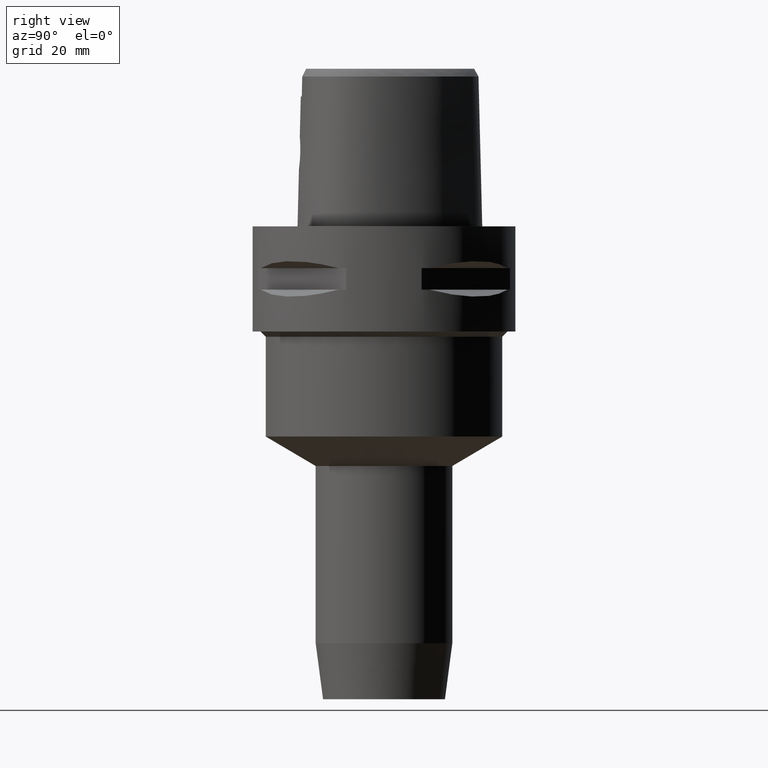
[diagram: clean part render]
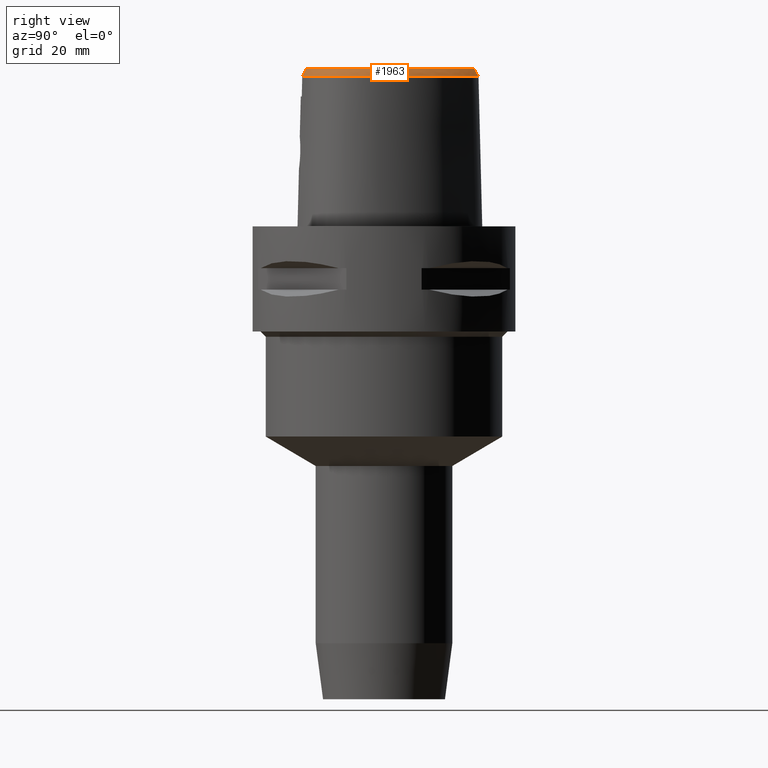
[diagram: same view with one face highlighted and labeled with its STEP entity id]
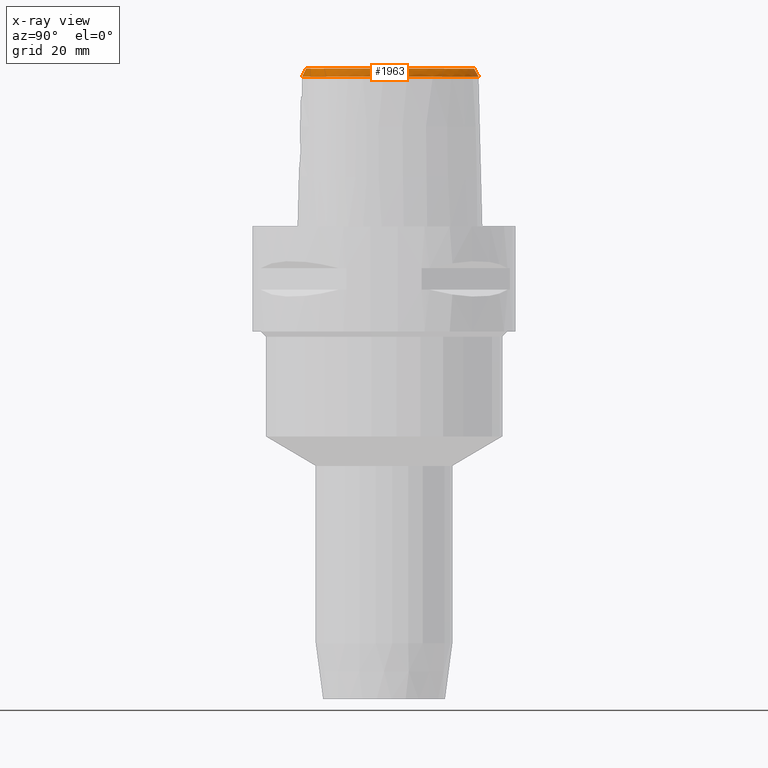
[diagram: x-ray of the same camera — body ghosted, the highlighted face saturated]
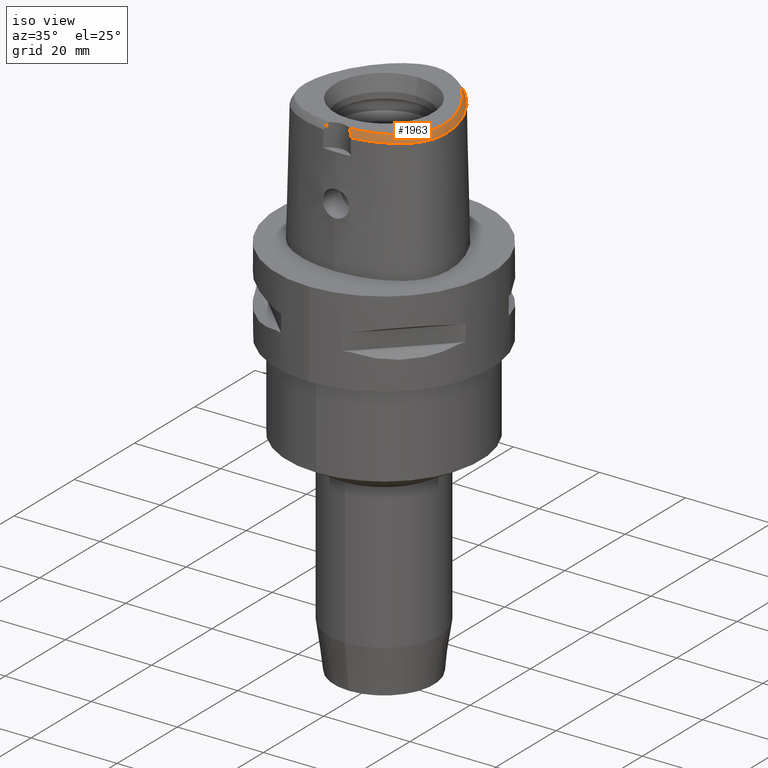
[diagram: same view with one face highlighted and labeled with its STEP entity id]
A machine part, right view. The second image highlights one B-rep face of the part: STEP entity #1963.
The next image is the same camera in x-ray: the body ghosted, the highlighted face saturated — about 0% of this face is hidden behind the body in this view.
A second angle (iso view) of the same face is appended — the face is thin or edge-on in the first view.
In plain terms, the highlighted face is a freeform B-spline surface patch.
Its self-contained STEP definition (entity closure, byte-faithful):
#62=CARTESIAN_POINT('',(-6.301949014352E-11,1.715328888648E1,3.E1));
#67=CARTESIAN_POINT('',(-6.301949014352E-11,1.715328888648E1,3.E1));
#68=CARTESIAN_POINT('',(2.952808845493E-1,1.715328888649E1,3.E1));
#69=CARTESIAN_POINT('',(8.996240518942E-1,1.712053373212E1,3.E1));
#70=CARTESIAN_POINT('',(1.839623063405E0,1.696779608511E1,3.E1));
#71=CARTESIAN_POINT('',(2.836726050628E0,1.669834167716E1,3.E1));
#72=CARTESIAN_POINT('',(3.902307995238E0,1.629108025566E1,3.E1));
#73=CARTESIAN_POINT('',(5.012193201258E0,1.573802455976E1,3.E1));
#74=CARTESIAN_POINT('',(6.138288675819E0,1.504430367204E1,3.E1));
#75=CARTESIAN_POINT('',(7.271253655398E0,1.420874341671E1,3.E1));
#76=CARTESIAN_POINT('',(8.408897067925E0,1.322591154194E1,3.E1));
#77=CARTESIAN_POINT('',(9.619388095311E0,1.201176841734E1,3.E1));
#78=CARTESIAN_POINT('',(1.090777017913E1,1.049293888976E1,3.E1));
#79=CARTESIAN_POINT('',(1.213793198120E1,8.773161148917E0,3.E1));
#80=CARTESIAN_POINT('',(1.324637325697E1,6.926073774187E0,3.E1));
#81=CARTESIAN_POINT('',(1.419737952771E1,5.007788298564E0,3.E1));
#82=CARTESIAN_POINT('',(1.496229316134E1,3.083550301862E0,3.E1));
#83=CARTESIAN_POINT('',(1.550186244853E1,1.311581271920E0,3.E1));
#84=CARTESIAN_POINT('',(1.584512957817E1,-2.359655692572E-1,3.E1));
#85=CARTESIAN_POINT('',(1.604994466485E1,-1.661171639363E0,3.E1));
#86=CARTESIAN_POINT('',(1.613437291865E1,-2.999757364771E0,3.E1));
#87=CARTESIAN_POINT('',(1.610382151531E1,-4.283899246164E0,3.E1));
#88=CARTESIAN_POINT('',(1.596111171047E1,-5.467705118177E0,3.E1));
#89=CARTESIAN_POINT('',(1.572822893958E1,-6.510611710359E0,3.E1));
#90=CARTESIAN_POINT('',(1.541729113224E1,-7.443341571847E0,3.E1));
#91=CARTESIAN_POINT('',(1.504032080193E1,-8.272189424004E0,3.E1));
#92=CARTESIAN_POINT('',(1.459366130196E1,-9.028112711350E0,3.E1));
#93=CARTESIAN_POINT('',(1.404298874532E1,-9.767749437442E0,3.E1));
#94=CARTESIAN_POINT('',(1.336603494177E1,-1.050203108513E1,3.E1));
#95=CARTESIAN_POINT('',(1.255054291691E1,-1.122378210253E1,3.E1));
#96=CARTESIAN_POINT('',(1.156712205978E1,-1.193338522332E1,3.E1));
#97=CARTESIAN_POINT('',(1.045692113097E1,-1.258509027585E1,3.E1));
#98=CARTESIAN_POINT('',(9.233000760816E0,-1.317026669540E1,3.E1));
#99=CARTESIAN_POINT('',(7.871642923742E0,-1.369331724234E1,3.E1));
#100=CARTESIAN_POINT('',(6.328050233809E0,-1.415770189933E1,3.E1));
#101=CARTESIAN_POINT('',(4.481796408503E0,-1.455864547773E1,3.E1));
#102=CARTESIAN_POINT('',(3.124087400129E0,-1.473994121077E1,3.E1));
#103=CARTESIAN_POINT('',(2.406543924165E0,-1.480491841402E1,3.E1));
#124=CARTESIAN_POINT('',(3.168920890823E0,-1.555911073834E1,2.852071374673E1));
#125=CARTESIAN_POINT('',(3.092755863962E0,-1.546022835618E1,2.871177036265E1));
#126=CARTESIAN_POINT('',(2.933489244829E0,-1.527275526903E1,2.907622624035E1));
#127=CARTESIAN_POINT('',(2.681051135247E0,-1.502456832809E1,2.956379575468E1));
#128=CARTESIAN_POINT('',(2.499766096913E0,-1.487513360177E1,2.986017147677E1));
#129=CARTESIAN_POINT('',(2.406543924165E0,-1.480491841402E1,3.E1));
#134=CARTESIAN_POINT('',(-3.033118856553E-11,1.798202997910E1,
2.852071728569E1));
#135=CARTESIAN_POINT('',(3.160640283862E-1,1.798202997911E1,2.852071728569E1));
#136=CARTESIAN_POINT('',(9.444556255956E-1,1.794935734593E1,2.852061253470E1));
#137=CARTESIAN_POINT('',(1.944566238217E0,1.779351684613E1,2.852074034233E1));
#138=CARTESIAN_POINT('',(2.993196919373E0,1.751881258389E1,2.852072673424E1));
#139=CARTESIAN_POINT('',(4.104773808554E0,1.710718365092E1,2.852071388418E1));
#140=CARTESIAN_POINT('',(5.272340008291E0,1.654205518686E1,2.852072796846E1));
#141=CARTESIAN_POINT('',(6.468319583525E0,1.582226382908E1,2.852071723037E1));
#142=CARTESIAN_POINT('',(7.663775089447E0,1.495631395994E1,2.852072068686E1));
#143=CARTESIAN_POINT('',(8.847753470091E0,1.394996407013E1,2.852071243644E1));
#144=CARTESIAN_POINT('',(1.010616434408E1,1.270671497934E1,2.852072019736E1));
#145=CARTESIAN_POINT('',(1.142996639913E1,1.117017039078E1,2.852071235748E1));
#146=CARTESIAN_POINT('',(1.269747918486E1,9.429807283006E0,2.852072879973E1));
#147=CARTESIAN_POINT('',(1.384631090109E1,7.554180538340E0,2.852068870461E1));
#148=CARTESIAN_POINT('',(1.483540988501E1,5.608470311578E0,2.852072663608E1));
#149=CARTESIAN_POINT('',(1.564622846479E1,3.634586031218E0,2.852069901783E1));
#150=CARTESIAN_POINT('',(1.623469424307E1,1.783089345948E0,2.852072217919E1));
#151=CARTESIAN_POINT('',(1.662027875104E1,1.321033721159E-1,2.852072413092E1));
#152=CARTESIAN_POINT('',(1.685274680439E1,-1.370065810557E0,2.852071127421E1));
#153=CARTESIAN_POINT('',(1.695941766295E1,-2.798085060197E0,2.852071755278E1));
#154=CARTESIAN_POINT('',(1.694267713026E1,-4.167701875689E0,2.852072187744E1));
#155=CARTESIAN_POINT('',(1.680838281283E1,-5.425386029601E0,2.852071891668E1));
#156=CARTESIAN_POINT('',(1.657712197200E1,-6.546875778111E0,2.852071890934E1));
#157=CARTESIAN_POINT('',(1.626197535105E1,-7.555753811770E0,2.852071191624E1));
#158=CARTESIAN_POINT('',(1.587407684879E1,-8.461511503691E0,2.852071914926E1));
#159=CARTESIAN_POINT('',(1.541243120914E1,-9.289629805123E0,2.852074921533E1));
#160=CARTESIAN_POINT('',(1.485412816418E1,-1.008257685810E1,2.852069328220E1));
#161=CARTESIAN_POINT('',(1.417506599949E1,-1.086366423881E1,2.852072225130E1));
#162=CARTESIAN_POINT('',(1.336159758925E1,-1.162890517552E1,2.852072145747E1));
#163=CARTESIAN_POINT('',(1.238833944953E1,-1.238022706513E1,2.852071759475E1));
#164=CARTESIAN_POINT('',(1.124934598284E1,-1.309721057668E1,2.852071935061E1));
#165=CARTESIAN_POINT('',(9.993987618408E0,-1.373971058017E1,2.852071183823E1));
#166=CARTESIAN_POINT('',(8.612580430919E0,-1.431034534734E1,2.852073005811E1));
#167=CARTESIAN_POINT('',(7.076886887585E0,-1.481284154619E1,2.852071578288E1));
#168=CARTESIAN_POINT('',(5.250506827737E0,-1.525785800375E1,2.852071160907E1));
#169=CARTESIAN_POINT('',(3.885672497780E0,-1.547557029877E1,2.852069668137E1));
#170=CARTESIAN_POINT('',(3.168920890823E0,-1.555911073834E1,2.852071374673E1));
#226=DIRECTION('',(-1.927820962693E-11,-4.887572537803E-1,8.724198226067E-1));
#227=VECTOR('',#226,1.695608783729E0);
#228=CARTESIAN_POINT('',(-3.033118856553E-11,1.798202997910E1,
2.852071728569E1));
#229=LINE('',#228,#227);
#1520=CARTESIAN_POINT('',(2.406543924164E0,-1.480491841402E1,3.E1));
#1522=VERTEX_POINT('',#1520);
#1524=VERTEX_POINT('',#62);
#1529=VERTEX_POINT('',#124);
#1534=CARTESIAN_POINT('',(-3.033118856553E-11,1.798202997910E1,
2.852071728569E1));
#1535=VERTEX_POINT('',#1534);
#1730=CARTESIAN_POINT('',(1.921638056723E0,-1.476228150191E1,3.014606752064E1));
#1731=CARTESIAN_POINT('',(1.945471583157E0,-1.509223391841E1,2.955557618930E1));
#1732=CARTESIAN_POINT('',(1.969305109591E0,-1.542218633491E1,2.896508485796E1));
#1733=CARTESIAN_POINT('',(1.993138636024E0,-1.575213875141E1,2.837459352662E1));
#1734=CARTESIAN_POINT('',(2.081459557488E0,-1.475073483522E1,3.014606751878E1));
#1735=CARTESIAN_POINT('',(2.107294044374E0,-1.508054271603E1,2.955557619496E1));
#1736=CARTESIAN_POINT('',(2.133128531260E0,-1.541035059685E1,2.896508487114E1));
#1737=CARTESIAN_POINT('',(2.158963018146E0,-1.574015847766E1,2.837459354732E1));
#1738=CARTESIAN_POINT('',(2.373319334865E0,-1.472697260122E1,3.014606751968E1));
#1739=CARTESIAN_POINT('',(2.402822579543E0,-1.505648193174E1,2.955557619220E1));
#1740=CARTESIAN_POINT('',(2.432325824222E0,-1.538599126225E1,2.896508486472E1));
#1741=CARTESIAN_POINT('',(2.461829068900E0,-1.571550059277E1,2.837459353724E1));
#1742=CARTESIAN_POINT('',(3.120850732971E0,-1.465353995036E1,3.014606754506E1));
#1743=CARTESIAN_POINT('',(3.159839016361E0,-1.498211766197E1,2.955557611498E1));
#1744=CARTESIAN_POINT('',(3.198827299752E0,-1.531069537359E1,2.896508468490E1));
#1745=CARTESIAN_POINT('',(3.237815583142E0,-1.563927308521E1,2.837459325483E1));
#1746=CARTESIAN_POINT('',(4.146833328358E0,-1.451682702100E1,3.014606765264E1));
#1747=CARTESIAN_POINT('',(4.199139009613E0,-1.484363837671E1,2.955557578764E1));
#1748=CARTESIAN_POINT('',(4.251444690868E0,-1.517044973241E1,2.896508392263E1));
#1749=CARTESIAN_POINT('',(4.303750372123E0,-1.549726108811E1,2.837459205762E1));
#1750=CARTESIAN_POINT('',(5.429329910248E0,-1.427515886778E1,3.014606750008E1));
#1751=CARTESIAN_POINT('',(5.499204283864E0,-1.459867405562E1,2.955557625185E1));
#1752=CARTESIAN_POINT('',(5.569078657480E0,-1.492218924345E1,2.896508500361E1));
#1753=CARTESIAN_POINT('',(5.638953031097E0,-1.524570443129E1,2.837459375538E1));
#1754=CARTESIAN_POINT('',(6.636493775084E0,-1.397878592842E1,3.014606724579E1));
#1755=CARTESIAN_POINT('',(6.723971242433E0,-1.429799696099E1,2.955557702554E1));
#1756=CARTESIAN_POINT('',(6.811448709783E0,-1.461720799355E1,2.896508680529E1));
#1757=CARTESIAN_POINT('',(6.898926177132E0,-1.493641902611E1,2.837459658504E1));
#1758=CARTESIAN_POINT('',(7.757806025014E0,-1.363661252874E1,3.014606731177E1));
#1759=CARTESIAN_POINT('',(7.862954483603E0,-1.395045384334E1,2.955557682478E1));
#1760=CARTESIAN_POINT('',(7.968102942192E0,-1.426429515795E1,2.896508633779E1));
#1761=CARTESIAN_POINT('',(8.073251400782E0,-1.457813647255E1,2.837459585080E1));
#1762=CARTESIAN_POINT('',(8.785855291896E0,-1.325823727809E1,3.014606760144E1));
#1763=CARTESIAN_POINT('',(8.908710442765E0,-1.356558827978E1,2.955557594344E1));
#1764=CARTESIAN_POINT('',(9.031565593635E0,-1.387293928147E1,2.896508428544E1));
#1765=CARTESIAN_POINT('',(9.154420744505E0,-1.418029028316E1,2.837459262743E1));
#1766=CARTESIAN_POINT('',(9.720895044929E0,-1.285138575972E1,3.014606762441E1));
#1767=CARTESIAN_POINT('',(9.861470671059E0,-1.315105571928E1,2.955557587354E1));
#1768=CARTESIAN_POINT('',(1.000204629719E1,-1.345072567884E1,2.896508412267E1));
#1769=CARTESIAN_POINT('',(1.014262192332E1,-1.375039563840E1,2.837459237181E1));
#1770=CARTESIAN_POINT('',(1.056587528714E1,-1.242277312576E1,3.014606760862E1));
#1771=CARTESIAN_POINT('',(1.072406270196E1,-1.271354173575E1,2.955557592158E1));
#1772=CARTESIAN_POINT('',(1.088225011678E1,-1.300431034574E1,2.896508423454E1));
#1773=CARTESIAN_POINT('',(1.104043753160E1,-1.329507895573E1,2.837459254750E1));
#1774=CARTESIAN_POINT('',(1.132420619636E1,-1.197861606507E1,3.014606754530E1));
#1775=CARTESIAN_POINT('',(1.149986449667E1,-1.225918726612E1,2.955557611424E1));
#1776=CARTESIAN_POINT('',(1.167552279698E1,-1.253975846717E1,2.896508468318E1));
#1777=CARTESIAN_POINT('',(1.185118109730E1,-1.282032966822E1,2.837459325212E1));
#1778=CARTESIAN_POINT('',(1.200158129906E1,-1.152346692892E1,3.014606752897E1));
#1779=CARTESIAN_POINT('',(1.219441647041E1,-1.179253375310E1,2.955557616392E1));
#1780=CARTESIAN_POINT('',(1.238725164176E1,-1.206160057729E1,2.896508479886E1));
#1781=CARTESIAN_POINT('',(1.258008681310E1,-1.233066740147E1,2.837459343381E1));
#1782=CARTESIAN_POINT('',(1.260328848664E1,-1.106145690401E1,3.014606761496E1));
#1783=CARTESIAN_POINT('',(1.281292459276E1,-1.131766343411E1,2.955557590232E1));
#1784=CARTESIAN_POINT('',(1.302256069888E1,-1.157386996420E1,2.896508418968E1));
#1785=CARTESIAN_POINT('',(1.323219680500E1,-1.183007649430E1,2.837459247704E1));
#1786=CARTESIAN_POINT('',(1.313588082828E1,-1.059492903268E1,3.014606761422E1));
#1787=CARTESIAN_POINT('',(1.336178792682E1,-1.083692322489E1,2.955557590454E1));
#1788=CARTESIAN_POINT('',(1.358769502535E1,-1.107891741709E1,2.896508419486E1));
#1789=CARTESIAN_POINT('',(1.381360212388E1,-1.132091160930E1,2.837459248518E1));
#1790=CARTESIAN_POINT('',(1.360585445953E1,-1.012513599295E1,3.014606760781E1));
#1791=CARTESIAN_POINT('',(1.384735675596E1,-1.035158224223E1,2.955557592405E1));
#1792=CARTESIAN_POINT('',(1.408885905238E1,-1.057802849151E1,2.896508424029E1));
#1793=CARTESIAN_POINT('',(1.433036134881E1,-1.080447474079E1,2.837459255653E1));
#1794=CARTESIAN_POINT('',(1.401899001591E1,-9.652745079421E0,3.014606755431E1));
#1795=CARTESIAN_POINT('',(1.427527001154E1,-9.862333438868E0,2.955557608683E1));
#1796=CARTESIAN_POINT('',(1.453155000717E1,-1.007192179831E1,2.896508461935E1));
#1797=CARTESIAN_POINT('',(1.478783000280E1,-1.028151015776E1,2.837459315187E1));
#1798=CARTESIAN_POINT('',(1.438086815157E1,-9.177101933407E0,3.014606761285E1));
#1799=CARTESIAN_POINT('',(1.465092760019E1,-9.368617625007E0,2.955557590872E1));
#1800=CARTESIAN_POINT('',(1.492098704880E1,-9.560133316607E0,2.896508420458E1));
#1801=CARTESIAN_POINT('',(1.519104649741E1,-9.751649008206E0,2.837459250045E1));
#1802=CARTESIAN_POINT('',(1.469456997418E1,-8.699941564592E0,3.014606758975E1));
#1803=CARTESIAN_POINT('',(1.497729555342E1,-8.872232090831E0,2.955557597901E1));
#1804=CARTESIAN_POINT('',(1.526002113266E1,-9.044522617069E0,2.896508436828E1));
#1805=CARTESIAN_POINT('',(1.554274671189E1,-9.216813143308E0,2.837459275755E1));
#1806=CARTESIAN_POINT('',(1.496981620292E1,-8.210155051935E0,3.014606763392E1));
#1807=CARTESIAN_POINT('',(1.526401163001E1,-8.362028088064E0,2.955557584463E1));
#1808=CARTESIAN_POINT('',(1.555820705711E1,-8.513901124194E0,2.896508405534E1));
#1809=CARTESIAN_POINT('',(1.585240248420E1,-8.665774160323E0,2.837459226605E1));
#1810=CARTESIAN_POINT('',(1.521804032668E1,-7.686475189425E0,3.014606756782E1));
#1811=CARTESIAN_POINT('',(1.552201666041E1,-7.817650630900E0,2.955557604572E1));
#1812=CARTESIAN_POINT('',(1.582599299413E1,-7.948826072376E0,2.896508452361E1));
#1813=CARTESIAN_POINT('',(1.612996932786E1,-8.080001513851E0,2.837459300150E1));
#1814=CARTESIAN_POINT('',(1.543978730553E1,-7.121401213379E0,3.014606757771E1));
#1815=CARTESIAN_POINT('',(1.575201335655E1,-7.231492838202E0,2.955557601562E1));
#1816=CARTESIAN_POINT('',(1.606423940756E1,-7.341584463025E0,2.896508445354E1));
#1817=CARTESIAN_POINT('',(1.637646545857E1,-7.451676087848E0,2.837459289145E1));
#1818=CARTESIAN_POINT('',(1.563239514609E1,-6.512058264096E0,3.014606760998E1));
#1819=CARTESIAN_POINT('',(1.595131286543E1,-6.600887709348E0,2.955557591747E1));
#1820=CARTESIAN_POINT('',(1.627023058477E1,-6.689717154600E0,2.896508422496E1));
#1821=CARTESIAN_POINT('',(1.658914830412E1,-6.778546599852E0,2.837459253244E1));
#1822=CARTESIAN_POINT('',(1.579332524629E1,-5.853079568228E0,3.014606761927E1));
#1823=CARTESIAN_POINT('',(1.611740630659E1,-5.920642312779E0,2.955557588916E1));
#1824=CARTESIAN_POINT('',(1.644148736690E1,-5.988205057330E0,2.896508415905E1));
#1825=CARTESIAN_POINT('',(1.676556842721E1,-6.055767801882E0,2.837459242894E1));
#1826=CARTESIAN_POINT('',(1.591874905428E1,-5.139989059484E0,3.014606759395E1));
#1827=CARTESIAN_POINT('',(1.624651748603E1,-5.186408050662E0,2.955557596620E1));
#1828=CARTESIAN_POINT('',(1.657428591779E1,-5.232827041840E0,2.896508433844E1));
#1829=CARTESIAN_POINT('',(1.690205434955E1,-5.279246033017E0,2.837459271068E1));
#1830=CARTESIAN_POINT('',(1.600405395373E1,-4.367602520739E0,3.014606751159E1));
#1831=CARTESIAN_POINT('',(1.633409537967E1,-4.393152142250E0,2.955557621680E1));
#1832=CARTESIAN_POINT('',(1.666413680562E1,-4.418701763761E0,2.896508492201E1));
#1833=CARTESIAN_POINT('',(1.699417823156E1,-4.444251385271E0,2.837459362721E1));
#1834=CARTESIAN_POINT('',(1.604359650931E1,-3.532212617280E0,3.014606757995E1));
#1835=CARTESIAN_POINT('',(1.637457754872E1,-3.537262656150E0,2.955557600882E1));
#1836=CARTESIAN_POINT('',(1.670555858813E1,-3.542312695020E0,2.896508443768E1));
#1837=CARTESIAN_POINT('',(1.703653962754E1,-3.547362733890E0,2.837459286655E1));
#1838=CARTESIAN_POINT('',(1.603093397454E1,-2.631208863661E0,3.014606760392E1));
#1839=CARTESIAN_POINT('',(1.636160300720E1,-2.616191828124E0,2.955557593590E1));
#1840=CARTESIAN_POINT('',(1.669227203986E1,-2.601174792586E0,2.896508426788E1));
#1841=CARTESIAN_POINT('',(1.702294107252E1,-2.586157757049E0,2.837459259986E1));
#1842=CARTESIAN_POINT('',(1.595915371131E1,-1.662658182501E0,3.014606765120E1));
#1843=CARTESIAN_POINT('',(1.628834755684E1,-1.628116270686E0,2.955557579203E1));
#1844=CARTESIAN_POINT('',(1.661754140237E1,-1.593574358871E0,2.896508393285E1));
#1845=CARTESIAN_POINT('',(1.694673524790E1,-1.559032447056E0,2.837459207367E1));
#1846=CARTESIAN_POINT('',(1.582105438641E1,-6.271651471818E-1,
3.014606750459E1));
#1847=CARTESIAN_POINT('',(1.614768748149E1,-5.736201562772E-1,
2.955557623809E1));
#1848=CARTESIAN_POINT('',(1.647432057657E1,-5.200751653725E-1,
2.896508497159E1));
#1849=CARTESIAN_POINT('',(1.680095367165E1,-4.665301744679E-1,
2.837459370508E1));
#1850=CARTESIAN_POINT('',(1.560937329491E1,4.741482796899E-1,3.014606724464E1));
#1851=CARTESIAN_POINT('',(1.593244936184E1,5.460701787429E-1,2.955557702903E1));
#1852=CARTESIAN_POINT('',(1.625552542878E1,6.179920777960E-1,2.896508681343E1));
#1853=CARTESIAN_POINT('',(1.657860149572E1,6.899139768491E-1,2.837459659782E1));
#1854=CARTESIAN_POINT('',(1.531787321999E1,1.634996424431E0,3.014606728528E1));
#1855=CARTESIAN_POINT('',(1.563646104283E1,1.724709944833E0,2.955557690535E1));
#1856=CARTESIAN_POINT('',(1.595504886567E1,1.814423465235E0,2.896508652542E1));
#1857=CARTESIAN_POINT('',(1.627363668852E1,1.904136985637E0,2.837459614549E1));
#1858=CARTESIAN_POINT('',(1.494284851083E1,2.842621978979E0,3.014606760109E1));
#1859=CARTESIAN_POINT('',(1.525607501943E1,2.949545060262E0,2.955557594452E1));
#1860=CARTESIAN_POINT('',(1.556930152804E1,3.056468141546E0,2.896508428795E1));
#1861=CARTESIAN_POINT('',(1.588252803664E1,3.163391222829E0,2.837459263139E1));
#1862=CARTESIAN_POINT('',(1.448233588244E1,4.083569071549E0,3.014606761744E1));
#1863=CARTESIAN_POINT('',(1.478936176828E1,4.207164462238E0,2.955557589477E1));
#1864=CARTESIAN_POINT('',(1.509638765411E1,4.330759852927E0,2.896508417211E1));
#1865=CARTESIAN_POINT('',(1.540341353995E1,4.454355243615E0,2.837459244944E1));
#1866=CARTESIAN_POINT('',(1.393667417458E1,5.342825678114E0,3.014606751180E1));
#1867=CARTESIAN_POINT('',(1.423670665068E1,5.482535987247E0,2.955557621615E1));
#1868=CARTESIAN_POINT('',(1.453673912678E1,5.622246296381E0,2.896508492051E1));
#1869=CARTESIAN_POINT('',(1.483677160287E1,5.761956605514E0,2.837459362486E1));
#1870=CARTESIAN_POINT('',(1.331145499013E1,6.598494190113E0,3.014606756850E1));
#1871=CARTESIAN_POINT('',(1.360371028797E1,6.753815712025E0,2.955557604368E1));
#1872=CARTESIAN_POINT('',(1.389596558582E1,6.909137233937E0,2.896508451886E1));
#1873=CARTESIAN_POINT('',(1.418822088366E1,7.064458755849E0,2.837459299404E1));
#1874=CARTESIAN_POINT('',(1.261573594687E1,7.828335273944E0,3.014606760059E1));
#1875=CARTESIAN_POINT('',(1.289940427534E1,7.998834795967E0,2.955557594605E1));
#1876=CARTESIAN_POINT('',(1.318307260381E1,8.169334317989E0,2.896508429151E1));
#1877=CARTESIAN_POINT('',(1.346674093228E1,8.339833840012E0,2.837459263697E1));
#1878=CARTESIAN_POINT('',(1.185882049857E1,9.015408723852E0,3.014606748746E1));
#1879=CARTESIAN_POINT('',(1.213312501801E1,9.200598235628E0,2.955557629021E1));
#1880=CARTESIAN_POINT('',(1.240742953744E1,9.385787747404E0,2.896508509297E1));
#1881=CARTESIAN_POINT('',(1.268173405688E1,9.570977259181E0,2.837459389572E1));
#1882=CARTESIAN_POINT('',(1.105334956181E1,1.014224164331E1,3.014606753471E1));
#1883=CARTESIAN_POINT('',(1.131747164966E1,1.034168924452E1,2.955557614646E1));
#1884=CARTESIAN_POINT('',(1.158159373752E1,1.054113684574E1,2.896508475822E1));
#1885=CARTESIAN_POINT('',(1.184571582538E1,1.074058444696E1,2.837459336997E1));
#1886=CARTESIAN_POINT('',(1.021631445196E1,1.119020632285E1,3.014606764816E1));
#1887=CARTESIAN_POINT('',(1.046940249250E1,1.140348735407E1,2.955557580127E1));
#1888=CARTESIAN_POINT('',(1.072249053305E1,1.161676838529E1,2.896508395437E1));
#1889=CARTESIAN_POINT('',(1.097557857359E1,1.183004941652E1,2.837459210748E1));
#1890=CARTESIAN_POINT('',(9.361217304581E0,1.214967069335E1,3.014606743935E1));
#1891=CARTESIAN_POINT('',(9.602377412093E0,1.237635854643E1,2.955557643663E1));
#1892=CARTESIAN_POINT('',(9.843537519605E0,1.260304639951E1,2.896508543392E1));
#1893=CARTESIAN_POINT('',(1.008469762712E1,1.282973425258E1,2.837459443121E1));
#1894=CARTESIAN_POINT('',(8.500639981827E0,1.301487567742E1,3.014606736781E1));
#1895=CARTESIAN_POINT('',(8.728955252778E0,1.325450359347E1,2.955557665429E1));
#1896=CARTESIAN_POINT('',(8.957270523729E0,1.349413150952E1,2.896508594076E1));
#1897=CARTESIAN_POINT('',(9.185585794680E0,1.373375942557E1,2.837459522724E1));
#1898=CARTESIAN_POINT('',(7.647937462241E0,1.378149078251E1,3.014606755212E1));
#1899=CARTESIAN_POINT('',(7.862443071828E0,1.403356579885E1,2.955557609351E1));
#1900=CARTESIAN_POINT('',(8.076948681414E0,1.428564081519E1,2.896508463491E1));
#1901=CARTESIAN_POINT('',(8.291454291E0,1.453771583153E1,2.837459317630E1));
#1902=CARTESIAN_POINT('',(6.813834853099E0,1.444967919375E1,3.014606765734E1));
#1903=CARTESIAN_POINT('',(7.013507596227E0,1.471366923155E1,2.955557577333E1));
#1904=CARTESIAN_POINT('',(7.213180339354E0,1.497765926935E1,2.896508388932E1));
#1905=CARTESIAN_POINT('',(7.412853082481E0,1.524164930714E1,2.837459200530E1));
#1906=CARTESIAN_POINT('',(6.002541769863E0,1.502547896590E1,3.014606725511E1));
#1907=CARTESIAN_POINT('',(6.186374008866E0,1.530074448474E1,2.955557699719E1));
#1908=CARTESIAN_POINT('',(6.370206247869E0,1.557601000358E1,2.896508673927E1));
#1909=CARTESIAN_POINT('',(6.554038486873E0,1.585127552243E1,2.837459648135E1));
#1910=CARTESIAN_POINT('',(5.217346119370E0,1.551533331450E1,3.014606702603E1));
#1911=CARTESIAN_POINT('',(5.384319312142E0,1.580115057968E1,2.955557769418E1));
#1912=CARTESIAN_POINT('',(5.551292504914E0,1.608696784486E1,2.896508836233E1));
#1913=CARTESIAN_POINT('',(5.718265697686E0,1.637278511005E1,2.837459903048E1));
#1914=CARTESIAN_POINT('',(4.462672536686E0,1.592458628888E1,3.014606714018E1));
#1915=CARTESIAN_POINT('',(4.611762422178E0,1.622013672128E1,2.955557734686E1));
#1916=CARTESIAN_POINT('',(4.760852307671E0,1.651568715368E1,2.896508755355E1));
#1917=CARTESIAN_POINT('',(4.909942193163E0,1.681123758607E1,2.837459776023E1));
#1918=CARTESIAN_POINT('',(3.740696096283E0,1.625979921282E1,3.014606751577E1));
#1919=CARTESIAN_POINT('',(3.870906789227E0,1.656415102246E1,2.955557620410E1));
#1920=CARTESIAN_POINT('',(4.001117482171E0,1.686850283210E1,2.896508489243E1));
#1921=CARTESIAN_POINT('',(4.131328175115E0,1.717285464174E1,2.837459358076E1));
#1922=CARTESIAN_POINT('',(3.050972411233E0,1.652811943661E1,3.014606769304E1));
#1923=CARTESIAN_POINT('',(3.161307968543E0,1.684023720478E1,2.955557566473E1));
#1924=CARTESIAN_POINT('',(3.271643525853E0,1.715235497295E1,2.896508363643E1));
#1925=CARTESIAN_POINT('',(3.381979083164E0,1.746447274111E1,2.837459160813E1));
#1926=CARTESIAN_POINT('',(2.390644693282E0,1.673675222357E1,3.014606761856E1));
#1927=CARTESIAN_POINT('',(2.480254519026E0,1.705544826214E1,2.955557589137E1));
#1928=CARTESIAN_POINT('',(2.569864344771E0,1.737414430070E1,2.896508416418E1));
#1929=CARTESIAN_POINT('',(2.659474170516E0,1.769284033926E1,2.837459243699E1));
#1930=CARTESIAN_POINT('',(1.757281953583E0,1.689155520458E1,3.014606757202E1));
#1931=CARTESIAN_POINT('',(1.825381021717E0,1.721553935107E1,2.955557603293E1));
#1932=CARTESIAN_POINT('',(1.893480089850E0,1.753952349757E1,2.896508449384E1));
#1933=CARTESIAN_POINT('',(1.961579157983E0,1.786350764406E1,2.837459295475E1));
#1934=CARTESIAN_POINT('',(1.150126458906E0,1.699732679840E1,3.014606762661E1));
#1935=CARTESIAN_POINT('',(1.196033200759E0,1.732519931301E1,2.955557586685E1));
#1936=CARTESIAN_POINT('',(1.241939942613E0,1.765307182762E1,2.896508410709E1));
#1937=CARTESIAN_POINT('',(1.287846684467E0,1.798094434223E1,2.837459234732E1));
#1938=CARTESIAN_POINT('',(5.634537774065E-1,1.705836385859E1,3.014606762103E1));
#1939=CARTESIAN_POINT('',(5.866502252737E-1,1.738863042891E1,2.955557588384E1));
#1940=CARTESIAN_POINT('',(6.098466731409E-1,1.771889699924E1,2.896508414666E1));
#1941=CARTESIAN_POINT('',(6.330431210082E-1,1.804916356957E1,2.837459240947E1));
#1942=CARTESIAN_POINT('',(3.831133979348E-2,1.707674358622E1,3.014606757681E1));
#1943=CARTESIAN_POINT('',(3.976568629163E-2,1.740777593381E1,2.955557601837E1));
#1944=CARTESIAN_POINT('',(4.122003278978E-2,1.773880828139E1,2.896508445992E1));
#1945=CARTESIAN_POINT('',(4.267437928793E-2,1.806984062898E1,2.837459290147E1));
#1946=CARTESIAN_POINT('',(-3.073039906485E-1,1.706718847926E1,
3.014606759980E1));
#1947=CARTESIAN_POINT('',(-3.197282162665E-1,1.739782272064E1,
2.955557594843E1));
#1948=CARTESIAN_POINT('',(-3.321524418846E-1,1.772845696203E1,
2.896508429706E1));
#1949=CARTESIAN_POINT('',(-3.445766675027E-1,1.805909120341E1,
2.837459264569E1));
#1950=CARTESIAN_POINT('',(-4.666603261120E-1,1.705883681773E1,
3.014606763228E1));
#1951=CARTESIAN_POINT('',(-4.851958971043E-1,1.738911001770E1,
2.955557584958E1));
#1952=CARTESIAN_POINT('',(-5.037314680966E-1,1.771938321766E1,
2.896508406689E1));
#1953=CARTESIAN_POINT('',(-5.222670390889E-1,1.804965641762E1,
2.837459228419E1));
#1954=B_SPLINE_SURFACE_WITH_KNOTS('',3,3,((#1730,#1731,#1732,#1733),(#1734,
#1735,#1736,#1737),(#1738,#1739,#1740,#1741),(#1742,#1743,#1744,#1745),(#1746,
#1747,#1748,#1749),(#1750,#1751,#1752,#1753),(#1754,#1755,#1756,#1757),(#1758,
#1759,#1760,#1761),(#1762,#1763,#1764,#1765),(#1766,#1767,#1768,#1769),(#1770,
#1771,#1772,#1773),(#1774,#1775,#1776,#1777),(#1778,#1779,#1780,#1781),(#1782,
#1783,#1784,#1785),(#1786,#1787,#1788,#1789),(#1790,#1791,#1792,#1793),(#1794,
#1795,#1796,#1797),(#1798,#1799,#1800,#1801),(#1802,#1803,#1804,#1805),(#1806,
#1807,#1808,#1809),(#1810,#1811,#1812,#1813),(#1814,#1815,#1816,#1817),(#1818,
#1819,#1820,#1821),(#1822,#1823,#1824,#1825),(#1826,#1827,#1828,#1829),(#1830,
#1831,#1832,#1833),(#1834,#1835,#1836,#1837),(#1838,#1839,#1840,#1841),(#1842,
#1843,#1844,#1845),(#1846,#1847,#1848,#1849),(#1850,#1851,#1852,#1853),(#1854,
#1855,#1856,#1857),(#1858,#1859,#1860,#1861),(#1862,#1863,#1864,#1865),(#1866,
#1867,#1868,#1869),(#1870,#1871,#1872,#1873),(#1874,#1875,#1876,#1877),(#1878,
#1879,#1880,#1881),(#1882,#1883,#1884,#1885),(#1886,#1887,#1888,#1889),(#1890,
#1891,#1892,#1893),(#1894,#1895,#1896,#1897),(#1898,#1899,#1900,#1901),(#1902,
#1903,#1904,#1905),(#1906,#1907,#1908,#1909),(#1910,#1911,#1912,#1913),(#1914,
#1915,#1916,#1917),(#1918,#1919,#1920,#1921),(#1922,#1923,#1924,#1925),(#1926,
#1927,#1928,#1929),(#1930,#1931,#1932,#1933),(#1934,#1935,#1936,#1937),(#1938,
#1939,#1940,#1941),(#1942,#1943,#1944,#1945),(#1946,#1947,#1948,#1949),(#1950,
#1951,#1952,#1953)),.UNSPECIFIED.,.F.,.F.,.F.,(4,1,1,1,1,1,1,1,1,1,1,1,1,1,1,1,
1,1,1,1,1,1,1,1,1,1,1,1,1,1,1,1,1,1,1,1,1,1,1,1,1,1,1,1,1,1,1,1,1,1,1,1,1,4),(4,
4),(-6.850724150829E-3,0.E0,5.706470806014E-3,2.559234138984E-2,
4.547821197368E-2,6.536408255751E-2,8.524995314132E-2,1.051358237252E-1,
1.250216943090E-1,1.449075648928E-1,1.647934354767E-1,1.846793060605E-1,
2.045651766443E-1,2.244510472281E-1,2.443369178120E-1,2.642227883958E-1,
2.841086589796E-1,3.039945295635E-1,3.238804001472E-1,3.437662707311E-1,
3.636521413150E-1,3.835380118988E-1,4.034238824826E-1,4.233097530664E-1,
4.431956236503E-1,4.630814942341E-1,4.829673648179E-1,5.028532354018E-1,
5.227391059856E-1,5.426249765694E-1,5.625108471533E-1,5.823967177370E-1,
6.022825883209E-1,6.221684589048E-1,6.420543294886E-1,6.619402000724E-1,
6.818260706562E-1,7.017119412401E-1,7.215978118239E-1,7.414836824077E-1,
7.613695529916E-1,7.812554235753E-1,8.011412941592E-1,8.210271647431E-1,
8.409130353268E-1,8.607989059107E-1,8.806847764945E-1,9.005706470784E-1,
9.204565176622E-1,9.403423882460E-1,9.602282588299E-1,9.801141294136E-1,1.E0,
1.016057694065E0),(-7.571308552984E-2,1.075744602458E0),.UNSPECIFIED.);
#1955=ORIENTED_EDGE('',*,*,#1717,.T.);
#1956=ORIENTED_EDGE('',*,*,#1700,.F.);
#1958=ORIENTED_EDGE('',*,*,#1957,.F.);
#1960=ORIENTED_EDGE('',*,*,#1959,.T.);
#1961=EDGE_LOOP('',(#1955,#1956,#1958,#1960));
#1962=FACE_OUTER_BOUND('',#1961,.F.);
#104=B_SPLINE_CURVE_WITH_KNOTS('',3,(#67,#68,#69,#70,#71,#72,#73,#74,#75,#76,
#77,#78,#79,#80,#81,#82,#83,#84,#85,#86,#87,#88,#89,#90,#91,#92,#93,#94,#95,#96,
#97,#98,#99,#100,#101,#102,#103),.UNSPECIFIED.,.F.,.F.,(4,1,1,1,1,1,1,1,1,1,1,1,
1,1,1,1,1,1,1,1,1,1,1,1,1,1,1,1,1,1,1,1,1,1,4),(0.E0,2.941176470588E-2,
5.882352941176E-2,8.823529411765E-2,1.176470588235E-1,1.470588235294E-1,
1.764705882353E-1,2.058823529412E-1,2.352941176471E-1,2.647058823529E-1,
2.941176470588E-1,3.235294117647E-1,3.529411764706E-1,3.823529411765E-1,
4.117647058824E-1,4.411764705882E-1,4.705882352941E-1,5.E-1,5.294117647059E-1,
5.588235294118E-1,5.882352941176E-1,6.176470588235E-1,6.470588235294E-1,
6.764705882353E-1,7.058823529412E-1,7.352941176471E-1,7.647058823529E-1,
7.941176470588E-1,8.235294117647E-1,8.529411764706E-1,8.823529411765E-1,
9.117647058824E-1,9.411764705882E-1,9.705882352941E-1,1.E0),.UNSPECIFIED.);
#130=B_SPLINE_CURVE_WITH_KNOTS('',3,(#124,#125,#126,#127,#128,#129),
.UNSPECIFIED.,.F.,.F.,(4,1,1,4),(0.E0,3.333333333333E-1,6.666666666667E-1,1.E0),
.UNSPECIFIED.);
#171=B_SPLINE_CURVE_WITH_KNOTS('',3,(#134,#135,#136,#137,#138,#139,#140,#141,
#142,#143,#144,#145,#146,#147,#148,#149,#150,#151,#152,#153,#154,#155,#156,#157,
#158,#159,#160,#161,#162,#163,#164,#165,#166,#167,#168,#169,#170),.UNSPECIFIED.,
.F.,.F.,(4,1,1,1,1,1,1,1,1,1,1,1,1,1,1,1,1,1,1,1,1,1,1,1,1,1,1,1,1,1,1,1,1,1,4),
(0.E0,2.941176470588E-2,5.882352941176E-2,8.823529411765E-2,1.176470588235E-1,
1.470588235294E-1,1.764705882353E-1,2.058823529412E-1,2.352941176471E-1,
2.647058823529E-1,2.941176470588E-1,3.235294117647E-1,3.529411764706E-1,
3.823529411765E-1,4.117647058824E-1,4.411764705882E-1,4.705882352941E-1,5.E-1,
5.294117647059E-1,5.588235294118E-1,5.882352941176E-1,6.176470588235E-1,
6.470588235294E-1,6.764705882353E-1,7.058823529412E-1,7.352941176471E-1,
7.647058823529E-1,7.941176470588E-1,8.235294117647E-1,8.529411764706E-1,
8.823529411765E-1,9.117647058824E-1,9.411764705882E-1,9.705882352941E-1,1.E0),
.UNSPECIFIED.);
#1700=EDGE_CURVE('',#1524,#1522,#104,.T.);
#1717=EDGE_CURVE('',#1529,#1522,#130,.T.);
#1957=EDGE_CURVE('',#1535,#1524,#229,.T.);
#1959=EDGE_CURVE('',#1535,#1529,#171,.T.);
#1963=ADVANCED_FACE('',(#1962),#1954,.F.);